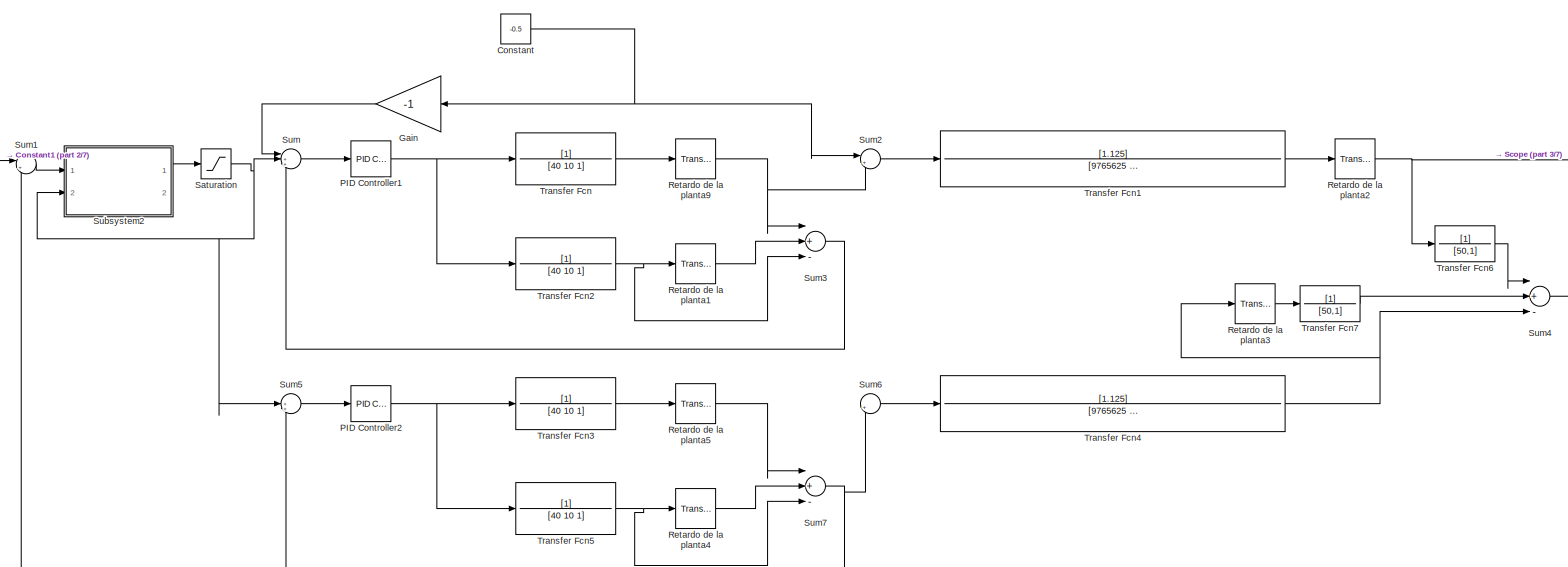
[diagram: root canvas - part 1/7, top center region]
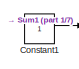
[diagram: root canvas - part 2/7, top left region]
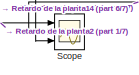
[diagram: root canvas - part 3/7, top right region]
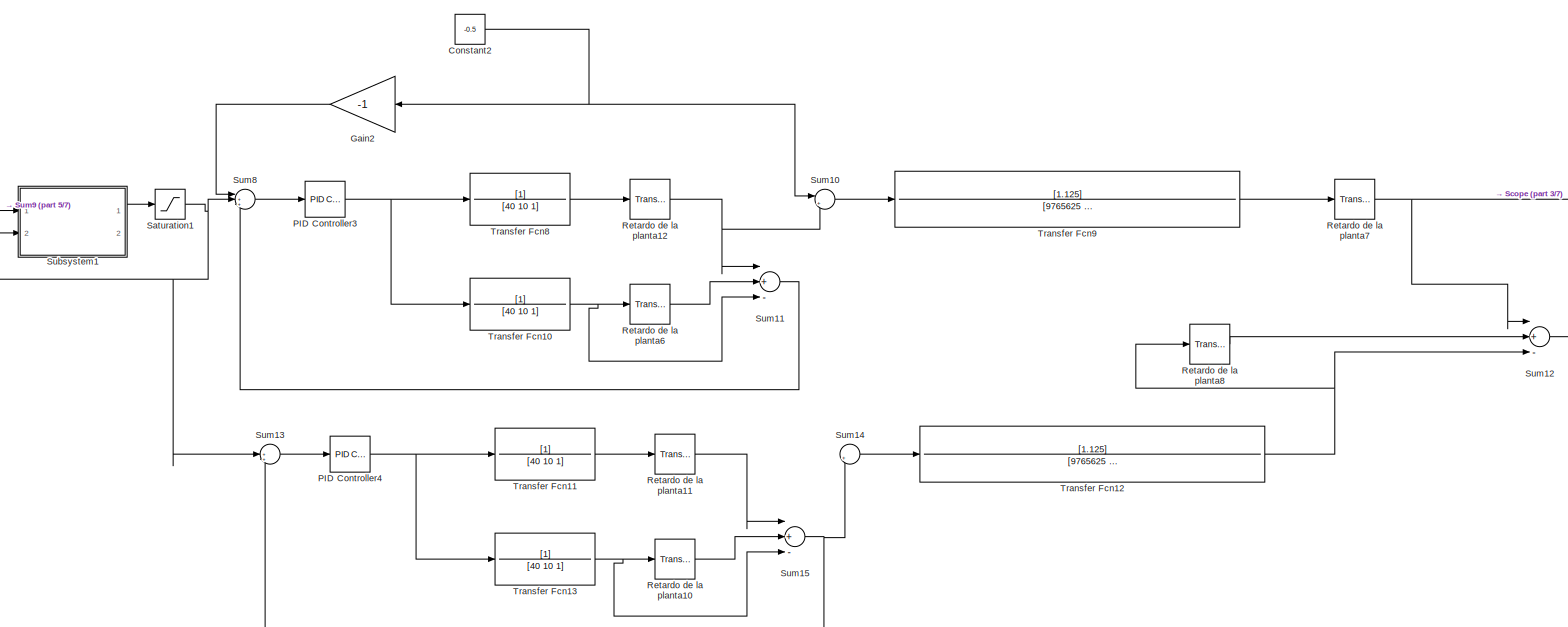
[diagram: root canvas - part 4/7, central region]
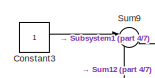
[diagram: root canvas - part 5/7, middle left region]
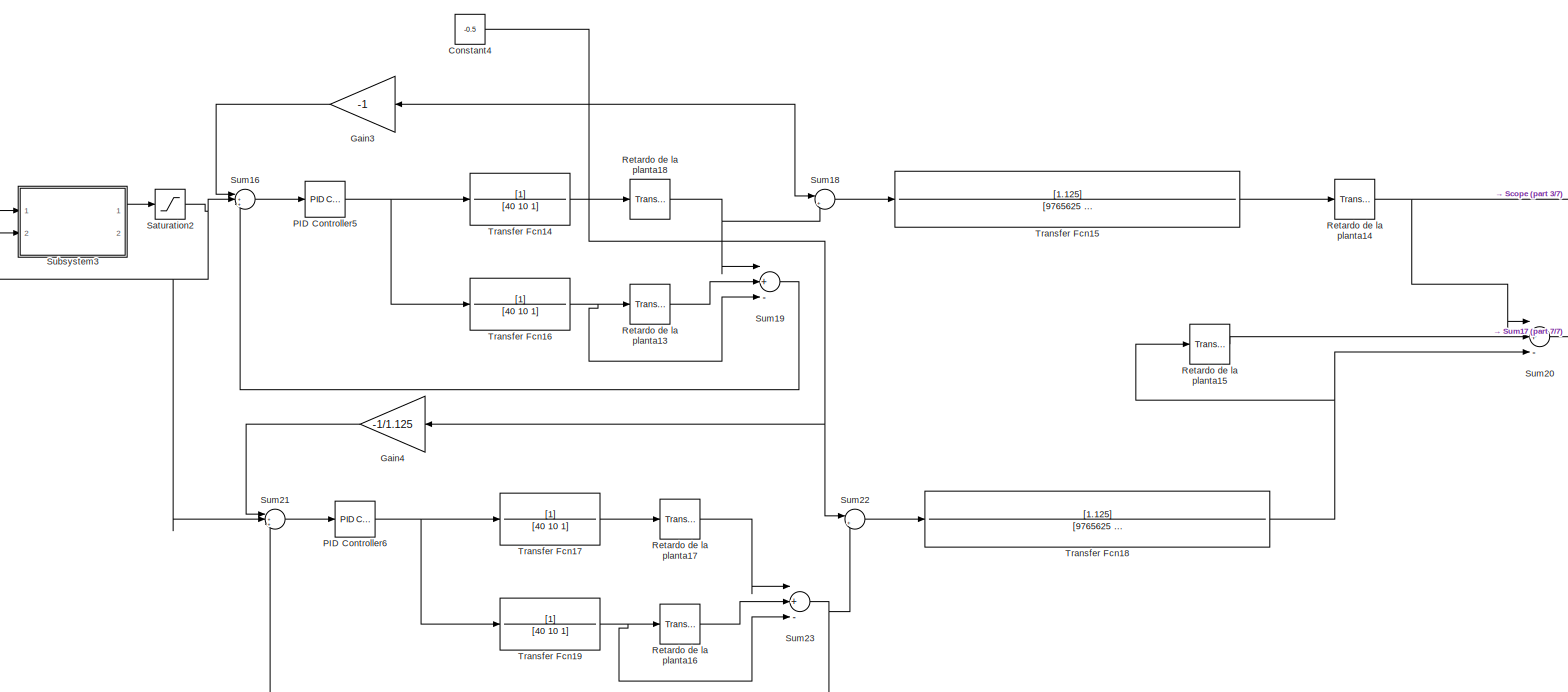
[diagram: root canvas - part 6/7, bottom center region]
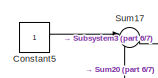
[diagram: root canvas - part 7/7, bottom left region]
MODEL slx_f3317713211a
KIND model
CONFIG AbsTol = auto
CONFIG EnableMultiTasking = off
CONFIG FixedStep = auto
CONFIG MaxStep = auto
CONFIG MinStep = auto
CONFIG RelTol = 1e-3
CONFIG SampleTimeConstraint = Unconstrained
CONFIG Solver = VariableStepAuto
CONFIG SolverName = VariableStepAuto
CONFIG StartTime = 0.0
CONFIG StopTime = 600
BLOCK [Constant] Constant
  Value = -0.5
BLOCK [Constant] Constant1
BLOCK [Constant] Constant2
  Value = -0.5
BLOCK [Constant] Constant3
BLOCK [Constant] Constant4
  Value = -0.5
BLOCK [Constant] Constant5
BLOCK [Gain] Gain
  Gain = -1
  OutDataTypeStr = Inherit: Inherit via internal rule
  ParamDataTypeStr = Inherit: Inherit via internal rule
  SaturateOnIntegerOverflow = off
BLOCK [Gain] Gain2
  Gain = -1
  OutDataTypeStr = Inherit: Inherit via internal rule
  ParamDataTypeStr = Inherit: Inherit via internal rule
  SaturateOnIntegerOverflow = off
BLOCK [Gain] Gain3
  Gain = -1
  OutDataTypeStr = Inherit: Inherit via internal rule
  ParamDataTypeStr = Inherit: Inherit via internal rule
  SaturateOnIntegerOverflow = off
BLOCK [Gain] Gain4
  Gain = -1/1.125
  OutDataTypeStr = Inherit: Inherit via internal rule
  ParamDataTypeStr = Inherit: Inherit via internal rule
  SaturateOnIntegerOverflow = off
BLOCK [Reference] PID Controller1  REF=simulink/Continuous/PID Controller
  Ports = [1, 1]
  SourceBlock = simulink/Continuous/PID Controller
  SourceProductBaseCode = SL
  SourceProductName = Simulink
  SourceType = PID 1dof
BLOCK [Reference] PID Controller2  REF=simulink/Continuous/PID Controller
  Ports = [1, 1]
  SourceBlock = simulink/Continuous/PID Controller
  SourceProductBaseCode = SL
  SourceProductName = Simulink
  SourceType = PID 1dof
BLOCK [Reference] PID Controller3  REF=simulink/Continuous/PID Controller
  Ports = [1, 1]
  SourceBlock = simulink/Continuous/PID Controller
  SourceProductBaseCode = SL
  SourceProductName = Simulink
  SourceType = PID 1dof
BLOCK [Reference] PID Controller4  REF=simulink/Continuous/PID Controller
  Ports = [1, 1]
  SourceBlock = simulink/Continuous/PID Controller
  SourceProductBaseCode = SL
  SourceProductName = Simulink
  SourceType = PID 1dof
BLOCK [Reference] PID Controller5  REF=simulink/Continuous/PID Controller
  Ports = [1, 1]
  SourceBlock = simulink/Continuous/PID Controller
  SourceProductBaseCode = SL
  SourceProductName = Simulink
  SourceType = PID 1dof
BLOCK [Reference] PID Controller6  REF=simulink/Continuous/PID Controller
  Ports = [1, 1]
  SourceBlock = simulink/Continuous/PID Controller
  SourceProductBaseCode = SL
  SourceProductName = Simulink
  SourceType = PID 1dof
BLOCK [TransportDelay] Retardo de la planta1
  DelayTime = 10
  Ports = [1, 1]
BLOCK [TransportDelay] Retardo de la planta10
  DelayTime = 10
  Ports = [1, 1]
BLOCK [TransportDelay] Retardo de la planta11
  DelayTime = 10
  Ports = [1, 1]
BLOCK [TransportDelay] Retardo de la planta12
  DelayTime = 10
  Ports = [1, 1]
BLOCK [TransportDelay] Retardo de la planta13
  DelayTime = 10
  Ports = [1, 1]
BLOCK [TransportDelay] Retardo de la planta14
  DelayTime = 10
  Ports = [1, 1]
BLOCK [TransportDelay] Retardo de la planta15
  DelayTime = 10
  Ports = [1, 1]
BLOCK [TransportDelay] Retardo de la planta16
  DelayTime = 10
  Ports = [1, 1]
BLOCK [TransportDelay] Retardo de la planta17
  DelayTime = 10
  Ports = [1, 1]
BLOCK [TransportDelay] Retardo de la planta18
  DelayTime = 10
  Ports = [1, 1]
BLOCK [TransportDelay] Retardo de la planta2
  DelayTime = 10
  Ports = [1, 1]
BLOCK [TransportDelay] Retardo de la planta3
  DelayTime = 10
  Ports = [1, 1]
BLOCK [TransportDelay] Retardo de la planta4
  DelayTime = 10
  Ports = [1, 1]
BLOCK [TransportDelay] Retardo de la planta5
  DelayTime = 10
  Ports = [1, 1]
BLOCK [TransportDelay] Retardo de la planta6
  DelayTime = 10
  Ports = [1, 1]
BLOCK [TransportDelay] Retardo de la planta7
  DelayTime = 10
  Ports = [1, 1]
BLOCK [TransportDelay] Retardo de la planta8
  DelayTime = 10
  Ports = [1, 1]
BLOCK [TransportDelay] Retardo de la planta9
  DelayTime = 10
  Ports = [1, 1]
BLOCK [Saturate] Saturation
  InputPortMap = u0
  LowerLimit = -1
  Ports = [1, 1]
  UpperLimit = 1
  ZeroCross = off
BLOCK [Saturate] Saturation1
  InputPortMap = u0
  LowerLimit = -1
  Ports = [1, 1]
  UpperLimit = 1
  ZeroCross = off
BLOCK [Saturate] Saturation2
  InputPortMap = u0
  LowerLimit = -1
  Ports = [1, 1]
  UpperLimit = 1
  ZeroCross = off
BLOCK [Scope] Scope
  Floating = off
  NumInputPorts = 3
  Ports = [3]
  ScopeSpecificationString = Simulink.scopes.TimeScopeBlockCfg('CurrentConfiguration', extmgr.ConfigurationSet(extmgr.Configuration('Core','General UI',true),extmgr.Configuration('Core','Source UI',true),extmgr.Configuration('Sources','WiredSimulink',true),extmgr.Configuration('Visuals','Time Domain',true,'SerializedDisplays',{struct('MinYLimReal','-0.14313','MaxYLimReal','1.28818','YLabelReal','','MinYLimMag','0.00000','MaxY...<+1422ch>
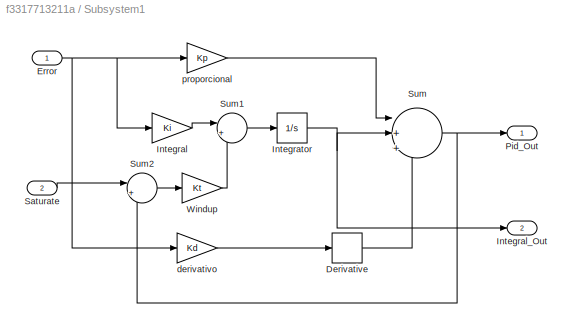
BLOCK [SubSystem] Subsystem1
  Ports = [2, 2]
  RequestExecContextInheritance = off
BLOCK [Derivative] Subsystem1/Derivative
BLOCK [Inport] Subsystem1/Error
  IconDisplay = Port number
BLOCK [Gain] Subsystem1/Integral
  Gain = Ki
BLOCK [Outport] Subsystem1/Integral_Out
  IconDisplay = Port number
  Port = 2
BLOCK [Integrator] Subsystem1/Integrator
  Ports = [1, 1]
BLOCK [Outport] Subsystem1/Pid_Out
  IconDisplay = Port number
BLOCK [Inport] Subsystem1/Saturate
  IconDisplay = Port number
  Port = 2
BLOCK [Sum] Subsystem1/Sum
  IconShape = round
  Inputs = |+++
  Ports = [3, 1]
BLOCK [Sum] Subsystem1/Sum1
  IconShape = round
  Inputs = |++
  Ports = [2, 1]
BLOCK [Sum] Subsystem1/Sum2
  IconShape = round
  Inputs = |+-
  Ports = [2, 1]
BLOCK [Gain] Subsystem1/Windup
  Gain = Kt
BLOCK [Gain] Subsystem1/derivativo
  Gain = Kd
BLOCK [Gain] Subsystem1/proporcional
  Gain = Kp
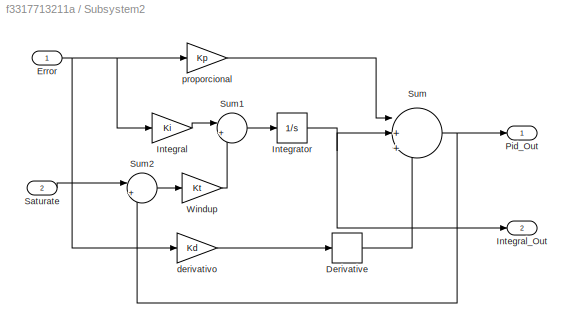
BLOCK [SubSystem] Subsystem2
  Ports = [2, 2]
  RequestExecContextInheritance = off
BLOCK [Derivative] Subsystem2/Derivative
BLOCK [Inport] Subsystem2/Error
  IconDisplay = Port number
BLOCK [Gain] Subsystem2/Integral
  Gain = Ki
BLOCK [Outport] Subsystem2/Integral_Out
  IconDisplay = Port number
  Port = 2
BLOCK [Integrator] Subsystem2/Integrator
  Ports = [1, 1]
BLOCK [Outport] Subsystem2/Pid_Out
  IconDisplay = Port number
BLOCK [Inport] Subsystem2/Saturate
  IconDisplay = Port number
  Port = 2
BLOCK [Sum] Subsystem2/Sum
  IconShape = round
  Inputs = |+++
  Ports = [3, 1]
BLOCK [Sum] Subsystem2/Sum1
  IconShape = round
  Inputs = |++
  Ports = [2, 1]
BLOCK [Sum] Subsystem2/Sum2
  IconShape = round
  Inputs = |+-
  Ports = [2, 1]
BLOCK [Gain] Subsystem2/Windup
  Gain = Kt
BLOCK [Gain] Subsystem2/derivativo
  Gain = Kd
BLOCK [Gain] Subsystem2/proporcional
  Gain = Kp
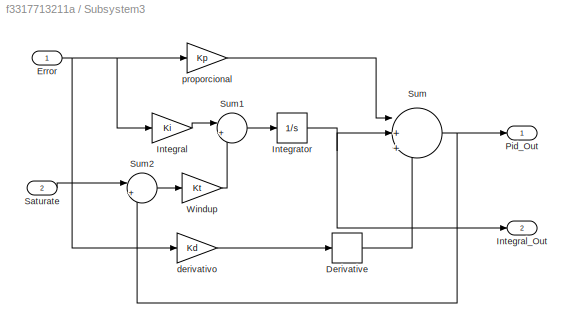
BLOCK [SubSystem] Subsystem3
  Ports = [2, 2]
  RequestExecContextInheritance = off
BLOCK [Derivative] Subsystem3/Derivative
BLOCK [Inport] Subsystem3/Error
  IconDisplay = Port number
BLOCK [Gain] Subsystem3/Integral
  Gain = Ki
BLOCK [Outport] Subsystem3/Integral_Out
  IconDisplay = Port number
  Port = 2
BLOCK [Integrator] Subsystem3/Integrator
  Ports = [1, 1]
BLOCK [Outport] Subsystem3/Pid_Out
  IconDisplay = Port number
BLOCK [Inport] Subsystem3/Saturate
  IconDisplay = Port number
  Port = 2
BLOCK [Sum] Subsystem3/Sum
  IconShape = round
  Inputs = |+++
  Ports = [3, 1]
BLOCK [Sum] Subsystem3/Sum1
  IconShape = round
  Inputs = |++
  Ports = [2, 1]
BLOCK [Sum] Subsystem3/Sum2
  IconShape = round
  Inputs = |+-
  Ports = [2, 1]
BLOCK [Gain] Subsystem3/Windup
  Gain = Kt
BLOCK [Gain] Subsystem3/derivativo
  Gain = Kd
BLOCK [Gain] Subsystem3/proporcional
  Gain = Kp
BLOCK [Sum] Sum
  IconShape = round
  InputSameDT = off
  Inputs = |++-
  OutDataTypeStr = Inherit: Inherit via internal rule
  Ports = [3, 1]
  SaturateOnIntegerOverflow = off
BLOCK [Sum] Sum1
  IconShape = round
  InputSameDT = off
  Inputs = |+-
  OutDataTypeStr = Inherit: Inherit via internal rule
  Ports = [2, 1]
  SaturateOnIntegerOverflow = off
BLOCK [Sum] Sum10
  IconShape = round
  InputSameDT = off
  Inputs = |++
  OutDataTypeStr = Inherit: Inherit via internal rule
  Ports = [2, 1]
  SaturateOnIntegerOverflow = off
BLOCK [Sum] Sum11
  InputSameDT = off
  Inputs = |+-+
  OutDataTypeStr = Inherit: Inherit via internal rule
  Ports = [3, 1]
  SaturateOnIntegerOverflow = off
BLOCK [Sum] Sum12
  InputSameDT = off
  Inputs = |+-+
  OutDataTypeStr = Inherit: Inherit via internal rule
  Ports = [3, 1]
  SaturateOnIntegerOverflow = off
BLOCK [Sum] Sum13
  IconShape = round
  InputSameDT = off
  Inputs = |++-
  OutDataTypeStr = Inherit: Inherit via internal rule
  Ports = [3, 1]
  SaturateOnIntegerOverflow = off
BLOCK [Sum] Sum14
  IconShape = round
  InputSameDT = off
  Inputs = |++
  OutDataTypeStr = Inherit: Inherit via internal rule
  Ports = [2, 1]
  SaturateOnIntegerOverflow = off
BLOCK [Sum] Sum15
  InputSameDT = off
  Inputs = |+-+
  OutDataTypeStr = Inherit: Inherit via internal rule
  Ports = [3, 1]
  SaturateOnIntegerOverflow = off
BLOCK [Sum] Sum16
  IconShape = round
  InputSameDT = off
  Inputs = |++-
  OutDataTypeStr = Inherit: Inherit via internal rule
  Ports = [3, 1]
  SaturateOnIntegerOverflow = off
BLOCK [Sum] Sum17
  IconShape = round
  InputSameDT = off
  Inputs = |+-
  OutDataTypeStr = Inherit: Inherit via internal rule
  Ports = [2, 1]
  SaturateOnIntegerOverflow = off
BLOCK [Sum] Sum18
  IconShape = round
  InputSameDT = off
  Inputs = |++
  OutDataTypeStr = Inherit: Inherit via internal rule
  Ports = [2, 1]
  SaturateOnIntegerOverflow = off
BLOCK [Sum] Sum19
  InputSameDT = off
  Inputs = |+-+
  OutDataTypeStr = Inherit: Inherit via internal rule
  Ports = [3, 1]
  SaturateOnIntegerOverflow = off
BLOCK [Sum] Sum2
  IconShape = round
  InputSameDT = off
  Inputs = |++
  OutDataTypeStr = Inherit: Inherit via internal rule
  Ports = [2, 1]
  SaturateOnIntegerOverflow = off
BLOCK [Sum] Sum20
  InputSameDT = off
  Inputs = |+-+
  OutDataTypeStr = Inherit: Inherit via internal rule
  Ports = [3, 1]
  SaturateOnIntegerOverflow = off
BLOCK [Sum] Sum21
  IconShape = round
  InputSameDT = off
  Inputs = |++-
  OutDataTypeStr = Inherit: Inherit via internal rule
  Ports = [3, 1]
  SaturateOnIntegerOverflow = off
BLOCK [Sum] Sum22
  IconShape = round
  InputSameDT = off
  Inputs = |++
  OutDataTypeStr = Inherit: Inherit via internal rule
  Ports = [2, 1]
  SaturateOnIntegerOverflow = off
BLOCK [Sum] Sum23
  InputSameDT = off
  Inputs = |+-+
  OutDataTypeStr = Inherit: Inherit via internal rule
  Ports = [3, 1]
  SaturateOnIntegerOverflow = off
BLOCK [Sum] Sum3
  InputSameDT = off
  Inputs = |+-+
  OutDataTypeStr = Inherit: Inherit via internal rule
  Ports = [3, 1]
  SaturateOnIntegerOverflow = off
BLOCK [Sum] Sum4
  InputSameDT = off
  Inputs = |+-+
  OutDataTypeStr = Inherit: Inherit via internal rule
  Ports = [3, 1]
  SaturateOnIntegerOverflow = off
BLOCK [Sum] Sum5
  IconShape = round
  InputSameDT = off
  Inputs = |++-
  OutDataTypeStr = Inherit: Inherit via internal rule
  Ports = [3, 1]
  SaturateOnIntegerOverflow = off
BLOCK [Sum] Sum6
  IconShape = round
  InputSameDT = off
  Inputs = |++
  OutDataTypeStr = Inherit: Inherit via internal rule
  Ports = [2, 1]
  SaturateOnIntegerOverflow = off
BLOCK [Sum] Sum7
  InputSameDT = off
  Inputs = |+-+
  OutDataTypeStr = Inherit: Inherit via internal rule
  Ports = [3, 1]
  SaturateOnIntegerOverflow = off
BLOCK [Sum] Sum8
  IconShape = round
  InputSameDT = off
  Inputs = |++-
  OutDataTypeStr = Inherit: Inherit via internal rule
  Ports = [3, 1]
  SaturateOnIntegerOverflow = off
BLOCK [Sum] Sum9
  IconShape = round
  InputSameDT = off
  Inputs = |+-
  OutDataTypeStr = Inherit: Inherit via internal rule
  Ports = [2, 1]
  SaturateOnIntegerOverflow = off
BLOCK [TransferFcn] Transfer Fcn
  Denominator = [40 10 1]
BLOCK [TransferFcn] Transfer Fcn1
  Denominator = [9765625     1953125      156250        6250         125           1 ]
  Numerator = [1.125]
BLOCK [TransferFcn] Transfer Fcn10
  Denominator = [40 10 1]
BLOCK [TransferFcn] Transfer Fcn11
  Denominator = [40 10 1]
BLOCK [TransferFcn] Transfer Fcn12
  Denominator = [9765625     1953125      156250        6250         125           1 ]
  Numerator = [1.125]
BLOCK [TransferFcn] Transfer Fcn13
  Denominator = [40 10 1]
BLOCK [TransferFcn] Transfer Fcn14
  Denominator = [40 10 1]
BLOCK [TransferFcn] Transfer Fcn15
  Denominator = [9765625     1953125      156250        6250         125           1 ]
  Numerator = [1.125]
BLOCK [TransferFcn] Transfer Fcn16
  Denominator = [40 10 1]
BLOCK [TransferFcn] Transfer Fcn17
  Denominator = [40 10 1]
BLOCK [TransferFcn] Transfer Fcn18
  Denominator = [9765625     1953125      156250        6250         125           1 ]
  Numerator = [1.125]
BLOCK [TransferFcn] Transfer Fcn19
  Denominator = [40 10 1]
BLOCK [TransferFcn] Transfer Fcn2
  Denominator = [40 10 1]
BLOCK [TransferFcn] Transfer Fcn3
  Denominator = [40 10 1]
BLOCK [TransferFcn] Transfer Fcn4
  Denominator = [9765625     1953125      156250        6250         125           1 ]
  Numerator = [1.125]
BLOCK [TransferFcn] Transfer Fcn5
  Denominator = [40 10 1]
BLOCK [TransferFcn] Transfer Fcn6
  Denominator = [50,1]
BLOCK [TransferFcn] Transfer Fcn7
  Denominator = [50,1]
BLOCK [TransferFcn] Transfer Fcn8
  Denominator = [40 10 1]
BLOCK [TransferFcn] Transfer Fcn9
  Denominator = [9765625     1953125      156250        6250         125           1 ]
  Numerator = [1.125]
LINE Constant1:1 -> Sum1:1
NET Constant2:1 -> Gain2:1, Sum10:1
LINE Constant3:1 -> Sum9:1
NET Constant4:1 -> Gain3:1, Gain4:1, Sum18:1, Sum22:1
LINE Constant5:1 -> Sum17:1
NET Constant:1 -> Gain:1, Sum2:1
LINE Gain2:1 -> Sum8:1
LINE Gain3:1 -> Sum16:1
LINE Gain4:1 -> Sum21:1
LINE Gain:1 -> Sum:1
NET PID Controller1:1 -> Transfer Fcn2:1, Transfer Fcn:1
NET PID Controller2:1 -> Transfer Fcn3:1, Transfer Fcn5:1
NET PID Controller3:1 -> Transfer Fcn10:1, Transfer Fcn8:1
NET PID Controller4:1 -> Transfer Fcn11:1, Transfer Fcn13:1
NET PID Controller5:1 -> Transfer Fcn14:1, Transfer Fcn16:1
NET PID Controller6:1 -> Transfer Fcn17:1, Transfer Fcn19:1
LINE Retardo de la planta10:1 -> Sum15:2
LINE Retardo de la planta11:1 -> Sum15:1
NET Retardo de la planta12:1 -> Sum10:2, Sum11:1
LINE Retardo de la planta13:1 -> Sum19:2
NET Retardo de la planta14:1 -> Scope:3, Sum20:1
LINE Retardo de la planta15:1 -> Sum20:2
LINE Retardo de la planta16:1 -> Sum23:2
LINE Retardo de la planta17:1 -> Sum23:1
NET Retardo de la planta18:1 -> Sum18:2, Sum19:1
LINE Retardo de la planta1:1 -> Sum3:2
NET Retardo de la planta2:1 -> Scope:1, Transfer Fcn6:1
LINE Retardo de la planta3:1 -> Transfer Fcn7:1
LINE Retardo de la planta4:1 -> Sum7:2
LINE Retardo de la planta5:1 -> Sum7:1
LINE Retardo de la planta6:1 -> Sum11:2
NET Retardo de la planta7:1 -> Scope:2, Sum12:1
LINE Retardo de la planta8:1 -> Sum12:2
NET Retardo de la planta9:1 -> Sum2:2, Sum3:1
NET Saturation1:1 -> Subsystem1:2, Sum13:2, Sum8:2
NET Saturation2:1 -> Subsystem3:2, Sum16:2, Sum21:2
NET Saturation:1 -> Subsystem2:2, Sum5:2, Sum:2
LINE Subsystem1/Derivative:1 -> Subsystem1/Sum:3
NET Subsystem1/Error:1 -> Subsystem1/Integral:1, Subsystem1/derivativo:1, Subsystem1/proporcional:1
LINE Subsystem1/Integral:1 -> Subsystem1/Sum1:1
NET Subsystem1/Integrator:1 -> Subsystem1/Integral_Out:1, Subsystem1/Sum:2
LINE Subsystem1/Saturate:1 -> Subsystem1/Sum2:1
LINE Subsystem1/Sum1:1 -> Subsystem1/Integrator:1
LINE Subsystem1/Sum2:1 -> Subsystem1/Windup:1
NET Subsystem1/Sum:1 -> Subsystem1/Pid_Out:1, Subsystem1/Sum2:2
LINE Subsystem1/Windup:1 -> Subsystem1/Sum1:2
LINE Subsystem1/derivativo:1 -> Subsystem1/Derivative:1
LINE Subsystem1/proporcional:1 -> Subsystem1/Sum:1
LINE Subsystem1:1 -> Saturation1:1
LINE Subsystem2/Derivative:1 -> Subsystem2/Sum:3
NET Subsystem2/Error:1 -> Subsystem2/Integral:1, Subsystem2/derivativo:1, Subsystem2/proporcional:1
LINE Subsystem2/Integral:1 -> Subsystem2/Sum1:1
NET Subsystem2/Integrator:1 -> Subsystem2/Integral_Out:1, Subsystem2/Sum:2
LINE Subsystem2/Saturate:1 -> Subsystem2/Sum2:1
LINE Subsystem2/Sum1:1 -> Subsystem2/Integrator:1
LINE Subsystem2/Sum2:1 -> Subsystem2/Windup:1
NET Subsystem2/Sum:1 -> Subsystem2/Pid_Out:1, Subsystem2/Sum2:2
LINE Subsystem2/Windup:1 -> Subsystem2/Sum1:2
LINE Subsystem2/derivativo:1 -> Subsystem2/Derivative:1
LINE Subsystem2/proporcional:1 -> Subsystem2/Sum:1
LINE Subsystem2:1 -> Saturation:1
LINE Subsystem3/Derivative:1 -> Subsystem3/Sum:3
NET Subsystem3/Error:1 -> Subsystem3/Integral:1, Subsystem3/derivativo:1, Subsystem3/proporcional:1
LINE Subsystem3/Integral:1 -> Subsystem3/Sum1:1
NET Subsystem3/Integrator:1 -> Subsystem3/Integral_Out:1, Subsystem3/Sum:2
LINE Subsystem3/Saturate:1 -> Subsystem3/Sum2:1
LINE Subsystem3/Sum1:1 -> Subsystem3/Integrator:1
LINE Subsystem3/Sum2:1 -> Subsystem3/Windup:1
NET Subsystem3/Sum:1 -> Subsystem3/Pid_Out:1, Subsystem3/Sum2:2
LINE Subsystem3/Windup:1 -> Subsystem3/Sum1:2
LINE Subsystem3/derivativo:1 -> Subsystem3/Derivative:1
LINE Subsystem3/proporcional:1 -> Subsystem3/Sum:1
LINE Subsystem3:1 -> Saturation2:1
LINE Sum10:1 -> Transfer Fcn9:1
LINE Sum11:1 -> Sum8:3
LINE Sum12:1 -> Sum9:2
LINE Sum13:1 -> PID Controller4:1
LINE Sum14:1 -> Transfer Fcn12:1
NET Sum15:1 -> Sum13:3, Sum14:2
LINE Sum16:1 -> PID Controller5:1
LINE Sum17:1 -> Subsystem3:1
LINE Sum18:1 -> Transfer Fcn15:1
LINE Sum19:1 -> Sum16:3
LINE Sum1:1 -> Subsystem2:1
LINE Sum20:1 -> Sum17:2
LINE Sum21:1 -> PID Controller6:1
LINE Sum22:1 -> Transfer Fcn18:1
NET Sum23:1 -> Sum21:3, Sum22:2
LINE Sum2:1 -> Transfer Fcn1:1
LINE Sum3:1 -> Sum:3
LINE Sum4:1 -> Sum1:2
LINE Sum5:1 -> PID Controller2:1
LINE Sum6:1 -> Transfer Fcn4:1
NET Sum7:1 -> Sum5:3, Sum6:2
LINE Sum8:1 -> PID Controller3:1
LINE Sum9:1 -> Subsystem1:1
LINE Sum:1 -> PID Controller1:1
NET Transfer Fcn10:1 -> Retardo de la planta6:1, Sum11:3
LINE Transfer Fcn11:1 -> Retardo de la planta11:1
NET Transfer Fcn12:1 -> Retardo de la planta8:1, Sum12:3
NET Transfer Fcn13:1 -> Retardo de la planta10:1, Sum15:3
LINE Transfer Fcn14:1 -> Retardo de la planta18:1
LINE Transfer Fcn15:1 -> Retardo de la planta14:1
NET Transfer Fcn16:1 -> Retardo de la planta13:1, Sum19:3
LINE Transfer Fcn17:1 -> Retardo de la planta17:1
NET Transfer Fcn18:1 -> Retardo de la planta15:1, Sum20:3
NET Transfer Fcn19:1 -> Retardo de la planta16:1, Sum23:3
LINE Transfer Fcn1:1 -> Retardo de la planta2:1
NET Transfer Fcn2:1 -> Retardo de la planta1:1, Sum3:3
LINE Transfer Fcn3:1 -> Retardo de la planta5:1
NET Transfer Fcn4:1 -> Retardo de la planta3:1, Sum4:3
NET Transfer Fcn5:1 -> Retardo de la planta4:1, Sum7:3
LINE Transfer Fcn6:1 -> Sum4:1
LINE Transfer Fcn7:1 -> Sum4:2
LINE Transfer Fcn8:1 -> Retardo de la planta12:1
LINE Transfer Fcn9:1 -> Retardo de la planta7:1
LINE Transfer Fcn:1 -> Retardo de la planta9:1
note: NET lines group one-source signal fan-out (src -> all destinations, sorted); 1:1 wires keep LINE
